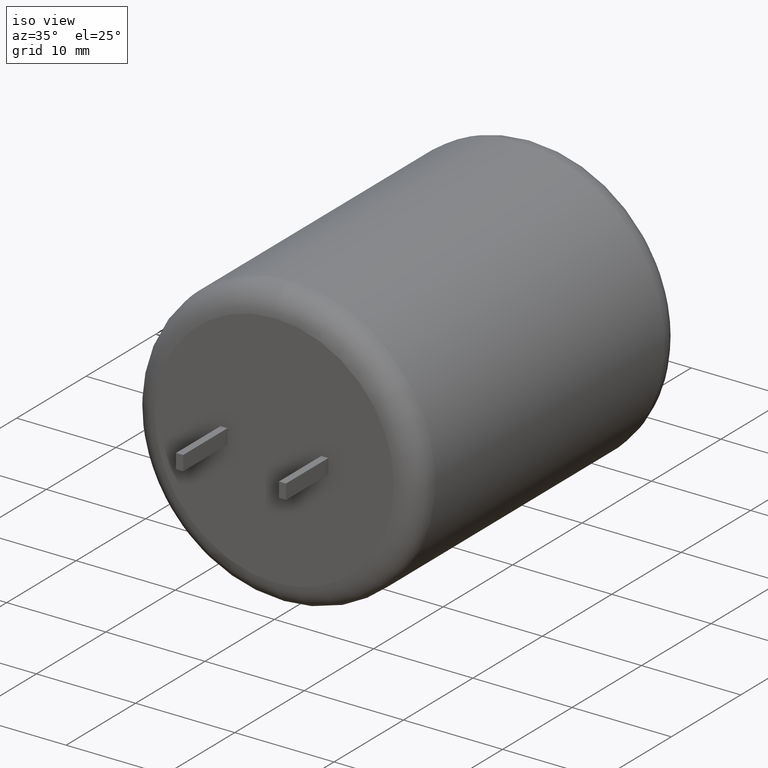
[diagram: clean part render]
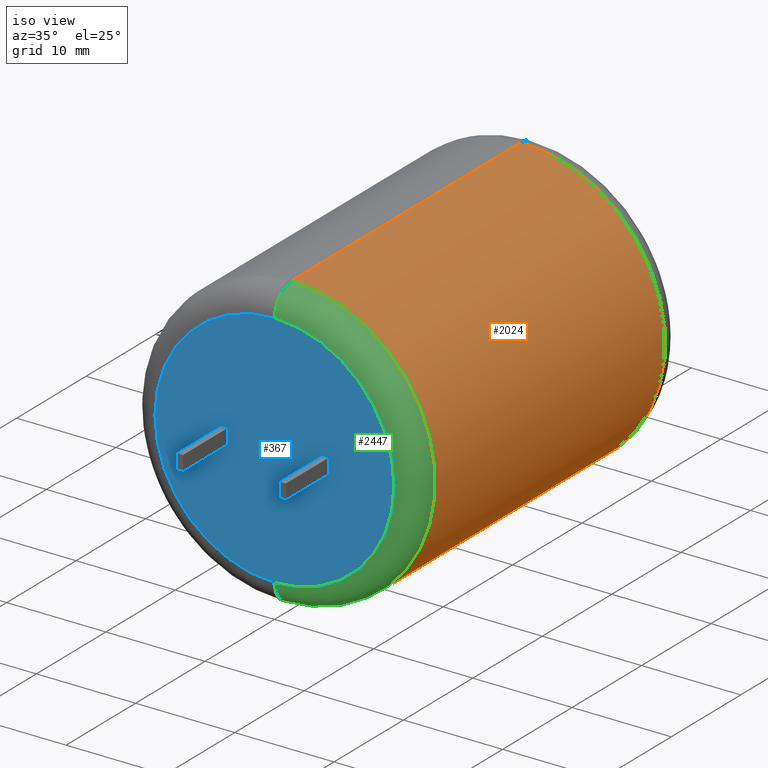
[diagram: same view with three faces highlighted in distinct colors, each labeled with its STEP entity id]
A machine part, iso view with three faces highlighted in distinct colors.
Their STEP definitions:

[orange] entity #2024 — the highlighted cylindrical surface (partial cylindrical patch) has radius 14.5 mm, axis along (-0, -1, -0).
#75 = EDGE_CURVE ( 'NONE', #1357, #1742, #758, .T. ) ;
#147 = CIRCLE ( 'NONE', #1514, 14.50000000000000000 ) ;
#158 = DIRECTION ( 'NONE',  ( 0.0000000000000000000, 0.0000000000000000000, 1.000000000000000000 ) ) ;
#278 = AXIS2_PLACEMENT_3D ( 'NONE', #2317, #658, #440 ) ;
#402 = CARTESIAN_POINT ( 'NONE',  ( 0.0000000000000000000, 35.54899999999999900, -14.50000000000000000 ) ) ;
#403 = ORIENTED_EDGE ( 'NONE', *, *, #1258, .T. ) ;
#430 = ORIENTED_EDGE ( 'NONE', *, *, #2253, .T. ) ;
#440 = DIRECTION ( 'NONE',  ( 0.0000000000000000000, 0.0000000000000000000, -1.000000000000000000 ) ) ;
#615 = VECTOR ( 'NONE', #2493, 1000.000000000000000 ) ;
#658 = DIRECTION ( 'NONE',  ( -0.0000000000000000000, -1.000000000000000000, -0.0000000000000000000 ) ) ;
#758 = LINE ( 'NONE', #1475, #2021 ) ;
#761 = CIRCLE ( 'NONE', #2254, 14.50000000000000000 ) ;
#783 = VERTEX_POINT ( 'NONE', #1229 ) ;
#1102 = CARTESIAN_POINT ( 'NONE',  ( 0.0000000000000000000, 2.451000000000001800, 0.0000000000000000000 ) ) ;
#1150 = ORIENTED_EDGE ( 'NONE', *, *, #2377, .T. ) ;
#1229 = CARTESIAN_POINT ( 'NONE',  ( 1.775737858763662000E-015, 2.451000000000001800, 14.50000000000000000 ) ) ;
#1258 = EDGE_CURVE ( 'NONE', #1357, #2062, #761, .T. ) ;
#1357 = VERTEX_POINT ( 'NONE', #402 ) ;
#1438 = DIRECTION ( 'NONE',  ( -0.0000000000000000000, -1.000000000000000000, -0.0000000000000000000 ) ) ;
#1475 = CARTESIAN_POINT ( 'NONE',  ( 0.0000000000000000000, 38.00000000000000000, -14.50000000000000000 ) ) ;
#1514 = AXIS2_PLACEMENT_3D ( 'NONE', #1102, #2191, #2163 ) ;
#1641 = LINE ( 'NONE', #2744, #615 ) ;
#1742 = VERTEX_POINT ( 'NONE', #2238 ) ;
#2021 = VECTOR ( 'NONE', #2519, 1000.000000000000000 ) ;
#2024 = ADVANCED_FACE ( 'NONE', ( #2154 ), #2378, .T. ) ;
#2062 = VERTEX_POINT ( 'NONE', #2740 ) ;
#2154 = FACE_OUTER_BOUND ( 'NONE', #2709, .T. ) ;
#2163 = DIRECTION ( 'NONE',  ( 0.0000000000000000000, 0.0000000000000000000, 1.000000000000000000 ) ) ;
#2176 = ORIENTED_EDGE ( 'NONE', *, *, #75, .F. ) ;
#2191 = DIRECTION ( 'NONE',  ( 0.0000000000000000000, 1.000000000000000000, 0.0000000000000000000 ) ) ;
#2238 = CARTESIAN_POINT ( 'NONE',  ( 0.0000000000000000000, 2.451000000000001800, -14.50000000000000000 ) ) ;
#2253 = EDGE_CURVE ( 'NONE', #2062, #783, #1641, .T. ) ;
#2254 = AXIS2_PLACEMENT_3D ( 'NONE', #2507, #1438, #158 ) ;
#2317 = CARTESIAN_POINT ( 'NONE',  ( 0.0000000000000000000, 38.00000000000000000, 0.0000000000000000000 ) ) ;
#2377 = EDGE_CURVE ( 'NONE', #783, #1742, #147, .T. ) ;
#2378 = CYLINDRICAL_SURFACE ( 'NONE', #278, 14.50000000000000000 ) ;
#2493 = DIRECTION ( 'NONE',  ( -0.0000000000000000000, -1.000000000000000000, -0.0000000000000000000 ) ) ;
#2507 = CARTESIAN_POINT ( 'NONE',  ( 0.0000000000000000000, 35.54899999999999900, 0.0000000000000000000 ) ) ;
#2519 = DIRECTION ( 'NONE',  ( -0.0000000000000000000, -1.000000000000000000, -0.0000000000000000000 ) ) ;
#2709 = EDGE_LOOP ( 'NONE', ( #403, #430, #1150, #2176 ) ) ;
#2740 = CARTESIAN_POINT ( 'NONE',  ( 1.775737858763662000E-015, 35.54899999999999900, 14.50000000000000000 ) ) ;
#2744 = CARTESIAN_POINT ( 'NONE',  ( 1.775737858763662000E-015, 38.00000000000000000, 14.50000000000000000 ) ) ;

[blue] entity #367 — the highlighted planar face has unit normal (0, 1, 0).
#13 = CARTESIAN_POINT ( 'NONE',  ( -5.429999999999998800, -0.0000000000000000000, -6.674325055353075200E-016 ) ) ;
#32 = VECTOR ( 'NONE', #1793, 1000.000000000000000 ) ;
#33 = CARTESIAN_POINT ( 'NONE',  ( -5.429999999999998800, 0.0000000000000000000, 0.7500000000000054400 ) ) ;
#140 = DIRECTION ( 'NONE',  ( 0.0000000000000000000, 0.0000000000000000000, 1.000000000000000000 ) ) ;
#148 = EDGE_CURVE ( 'NONE', #2671, #2106, #2186, .T. ) ;
#155 = CARTESIAN_POINT ( 'NONE',  ( 4.730000000000000400, 0.0000000000000000000, -0.7500000000000043300 ) ) ;
#244 = EDGE_LOOP ( 'NONE', ( #776, #2343 ) ) ;
#267 = AXIS2_PLACEMENT_3D ( 'NONE', #1732, #1088, #2573 ) ;
#272 = VERTEX_POINT ( 'NONE', #2107 ) ;
#349 = DIRECTION ( 'NONE',  ( 1.000000000000000000, 0.0000000000000000000, 1.548860246407863300E-016 ) ) ;
#367 = ADVANCED_FACE ( 'NONE', ( #2078, #1827, #877 ), #2127, .F. ) ;
#400 = CARTESIAN_POINT ( 'NONE',  ( -4.729999999999998600, 0.0000000000000000000, 0.7500000000000113200 ) ) ;
#436 = CARTESIAN_POINT ( 'NONE',  ( 5.430000000000000600, 0.0000000000000000000, -0.7500000000000042200 ) ) ;
#439 = VERTEX_POINT ( 'NONE', #2586 ) ;
#513 = AXIS2_PLACEMENT_3D ( 'NONE', #2100, #1280, #2533 ) ;
#524 = CARTESIAN_POINT ( 'NONE',  ( 5.430000000000000600, 0.0000000000000000000, -3.122849337825750200E-015 ) ) ;
#542 = EDGE_CURVE ( 'NONE', #814, #1081, #2522, .T. ) ;
#554 = CARTESIAN_POINT ( 'NONE',  ( 4.730000000000000400, 0.0000000000000000000, -0.7500000000000043300 ) ) ;
#596 = CARTESIAN_POINT ( 'NONE',  ( 4.730000000000001300, 0.0000000000000000000, 0.7499999999999990000 ) ) ;
#774 = CARTESIAN_POINT ( 'NONE',  ( 4.730000000000001300, 0.0000000000000000000, 0.7499999999999990000 ) ) ;
#776 = ORIENTED_EDGE ( 'NONE', *, *, #835, .T. ) ;
#793 = VECTOR ( 'NONE', #2147, 1000.000000000000000 ) ;
#814 = VERTEX_POINT ( 'NONE', #1856 ) ;
#835 = EDGE_CURVE ( 'NONE', #2446, #272, #1012, .T. ) ;
#839 = CARTESIAN_POINT ( 'NONE',  ( -5.429999999999998800, -0.0000000000000000000, -0.7500000000000006700 ) ) ;
#845 = VECTOR ( 'NONE', #349, 1000.000000000000000 ) ;
#876 = CARTESIAN_POINT ( 'NONE',  ( -5.429999999999998800, 0.0000000000000000000, 0.7500000000000054400 ) ) ;
#877 = FACE_BOUND ( 'NONE', #2307, .T. ) ;
#921 = ORIENTED_EDGE ( 'NONE', *, *, #542, .F. ) ;
#925 = ORIENTED_EDGE ( 'NONE', *, *, #2155, .F. ) ;
#1012 = CIRCLE ( 'NONE', #2268, 12.04900000000000100 ) ;
#1027 = DIRECTION ( 'NONE',  ( -0.0000000000000000000, -1.000000000000000000, -0.0000000000000000000 ) ) ;
#1038 = ORIENTED_EDGE ( 'NONE', *, *, #148, .T. ) ;
#1062 = DIRECTION ( 'NONE',  ( 0.0000000000000000000, 0.0000000000000000000, 1.000000000000000000 ) ) ;
#1081 = VERTEX_POINT ( 'NONE', #596 ) ;
#1088 = DIRECTION ( 'NONE',  ( 0.0000000000000000000, 1.000000000000000000, 0.0000000000000000000 ) ) ;
#1129 = VECTOR ( 'NONE', #1885, 1000.000000000000000 ) ;
#1248 = DIRECTION ( 'NONE',  ( 0.0000000000000000000, -0.0000000000000000000, -1.000000000000000000 ) ) ;
#1280 = DIRECTION ( 'NONE',  ( -0.0000000000000000000, -1.000000000000000000, -0.0000000000000000000 ) ) ;
#1303 = ORIENTED_EDGE ( 'NONE', *, *, #2746, .T. ) ;
#1432 = VECTOR ( 'NONE', #2364, 1000.000000000000000 ) ;
#1471 = LINE ( 'NONE', #524, #2414 ) ;
#1559 = CARTESIAN_POINT ( 'NONE',  ( 0.0000000000000000000, 0.0000000000000000000, 12.04900000000000100 ) ) ;
#1590 = ORIENTED_EDGE ( 'NONE', *, *, #2005, .F. ) ;
#1609 = LINE ( 'NONE', #2279, #2485 ) ;
#1683 = CARTESIAN_POINT ( 'NONE',  ( -5.429999999999998800, -0.0000000000000000000, -0.7500000000000006700 ) ) ;
#1712 = VECTOR ( 'NONE', #2710, 1000.000000000000000 ) ;
#1732 = CARTESIAN_POINT ( 'NONE',  ( 0.0000000000000000000, 0.0000000000000000000, 0.0000000000000000000 ) ) ;
#1773 = EDGE_CURVE ( 'NONE', #439, #1816, #1961, .T. ) ;
#1793 = DIRECTION ( 'NONE',  ( -1.000000000000000000, -0.0000000000000000000, 1.548860246407865500E-015 ) ) ;
#1816 = VERTEX_POINT ( 'NONE', #436 ) ;
#1827 = FACE_BOUND ( 'NONE', #2728, .T. ) ;
#1846 = VERTEX_POINT ( 'NONE', #2646 ) ;
#1856 = CARTESIAN_POINT ( 'NONE',  ( 5.430000000000000600, 0.0000000000000000000, 0.7499999999999980000 ) ) ;
#1885 = DIRECTION ( 'NONE',  ( 1.000000000000000000, 0.0000000000000000000, 0.0000000000000000000 ) ) ;
#1891 = LINE ( 'NONE', #155, #1712 ) ;
#1906 = EDGE_CURVE ( 'NONE', #1081, #439, #1891, .T. ) ;
#1944 = ORIENTED_EDGE ( 'NONE', *, *, #2235, .T. ) ;
#1961 = LINE ( 'NONE', #554, #845 ) ;
#1963 = EDGE_CURVE ( 'NONE', #272, #2446, #2655, .T. ) ;
#2005 = EDGE_CURVE ( 'NONE', #2671, #1846, #2689, .T. ) ;
#2025 = LINE ( 'NONE', #876, #793 ) ;
#2078 = FACE_OUTER_BOUND ( 'NONE', #244, .T. ) ;
#2100 = CARTESIAN_POINT ( 'NONE',  ( 0.0000000000000000000, 0.0000000000000000000, 0.0000000000000000000 ) ) ;
#2106 = VERTEX_POINT ( 'NONE', #33 ) ;
#2107 = CARTESIAN_POINT ( 'NONE',  ( 1.625657393528153900E-015, 0.0000000000000000000, -12.04900000000000100 ) ) ;
#2127 = PLANE ( 'NONE',  #267 ) ;
#2147 = DIRECTION ( 'NONE',  ( 1.000000000000000000, 0.0000000000000000000, 8.363845330602461400E-015 ) ) ;
#2155 = EDGE_CURVE ( 'NONE', #1816, #814, #1471, .T. ) ;
#2186 = LINE ( 'NONE', #13, #1432 ) ;
#2235 = EDGE_CURVE ( 'NONE', #2255, #1846, #1609, .T. ) ;
#2255 = VERTEX_POINT ( 'NONE', #400 ) ;
#2268 = AXIS2_PLACEMENT_3D ( 'NONE', #2274, #1027, #140 ) ;
#2274 = CARTESIAN_POINT ( 'NONE',  ( 0.0000000000000000000, 0.0000000000000000000, 0.0000000000000000000 ) ) ;
#2276 = ORIENTED_EDGE ( 'NONE', *, *, #1773, .F. ) ;
#2279 = CARTESIAN_POINT ( 'NONE',  ( -4.729999999999998600, 0.0000000000000000000, 0.7500000000000113200 ) ) ;
#2307 = EDGE_LOOP ( 'NONE', ( #2514, #921, #925, #2276 ) ) ;
#2343 = ORIENTED_EDGE ( 'NONE', *, *, #1963, .T. ) ;
#2364 = DIRECTION ( 'NONE',  ( 0.0000000000000000000, 0.0000000000000000000, 1.000000000000000000 ) ) ;
#2414 = VECTOR ( 'NONE', #1062, 1000.000000000000000 ) ;
#2446 = VERTEX_POINT ( 'NONE', #1559 ) ;
#2485 = VECTOR ( 'NONE', #1248, 1000.000000000000000 ) ;
#2514 = ORIENTED_EDGE ( 'NONE', *, *, #1906, .F. ) ;
#2522 = LINE ( 'NONE', #774, #32 ) ;
#2533 = DIRECTION ( 'NONE',  ( 0.0000000000000000000, 0.0000000000000000000, 1.000000000000000000 ) ) ;
#2573 = DIRECTION ( 'NONE',  ( 0.0000000000000000000, -0.0000000000000000000, 1.000000000000000000 ) ) ;
#2586 = CARTESIAN_POINT ( 'NONE',  ( 4.730000000000000400, 0.0000000000000000000, -0.7500000000000043300 ) ) ;
#2646 = CARTESIAN_POINT ( 'NONE',  ( -4.729999999999998600, 0.0000000000000000000, -0.7500000000000006700 ) ) ;
#2655 = CIRCLE ( 'NONE', #513, 12.04900000000000100 ) ;
#2671 = VERTEX_POINT ( 'NONE', #1683 ) ;
#2689 = LINE ( 'NONE', #839, #1129 ) ;
#2710 = DIRECTION ( 'NONE',  ( -5.782411586589343800E-016, -0.0000000000000000000, -1.000000000000000000 ) ) ;
#2728 = EDGE_LOOP ( 'NONE', ( #1038, #1303, #1944, #1590 ) ) ;
#2746 = EDGE_CURVE ( 'NONE', #2106, #2255, #2025, .T. ) ;

[green] entity #2447 — the highlighted toroidal blend (fillet) surface has major radius 12.049 mm and minor (blend) radius 2.451 mm.
#76 = CARTESIAN_POINT ( 'NONE',  ( 0.0000000000000000000, 2.451000000000001800, 0.0000000000000000000 ) ) ;
#122 = DIRECTION ( 'NONE',  ( 0.0000000000000000000, 0.0000000000000000000, 1.000000000000000000 ) ) ;
#147 = CIRCLE ( 'NONE', #1514, 14.50000000000000000 ) ;
#262 = CIRCLE ( 'NONE', #1952, 2.451000000000000100 ) ;
#272 = VERTEX_POINT ( 'NONE', #2107 ) ;
#513 = AXIS2_PLACEMENT_3D ( 'NONE', #2100, #1280, #2533 ) ;
#565 = EDGE_CURVE ( 'NONE', #2446, #783, #2068, .T. ) ;
#709 = ORIENTED_EDGE ( 'NONE', *, *, #565, .F. ) ;
#783 = VERTEX_POINT ( 'NONE', #1229 ) ;
#1067 = DIRECTION ( 'NONE',  ( 1.000000000000000000, -0.0000000000000000000, 1.224646799147353200E-016 ) ) ;
#1102 = CARTESIAN_POINT ( 'NONE',  ( 0.0000000000000000000, 2.451000000000001800, 0.0000000000000000000 ) ) ;
#1229 = CARTESIAN_POINT ( 'NONE',  ( 1.775737858763662000E-015, 2.451000000000001800, 14.50000000000000000 ) ) ;
#1280 = DIRECTION ( 'NONE',  ( -0.0000000000000000000, -1.000000000000000000, -0.0000000000000000000 ) ) ;
#1514 = AXIS2_PLACEMENT_3D ( 'NONE', #1102, #2191, #2163 ) ;
#1559 = CARTESIAN_POINT ( 'NONE',  ( 0.0000000000000000000, 0.0000000000000000000, 12.04900000000000100 ) ) ;
#1596 = FACE_OUTER_BOUND ( 'NONE', #2626, .T. ) ;
#1742 = VERTEX_POINT ( 'NONE', #2238 ) ;
#1747 = AXIS2_PLACEMENT_3D ( 'NONE', #76, #2381, #2392 ) ;
#1910 = ORIENTED_EDGE ( 'NONE', *, *, #1963, .F. ) ;
#1952 = AXIS2_PLACEMENT_3D ( 'NONE', #2562, #1067, #2326 ) ;
#1963 = EDGE_CURVE ( 'NONE', #272, #2446, #2655, .T. ) ;
#2068 = CIRCLE ( 'NONE', #2183, 2.451000000000000100 ) ;
#2100 = CARTESIAN_POINT ( 'NONE',  ( 0.0000000000000000000, 0.0000000000000000000, 0.0000000000000000000 ) ) ;
#2107 = CARTESIAN_POINT ( 'NONE',  ( 1.625657393528153900E-015, 0.0000000000000000000, -12.04900000000000100 ) ) ;
#2163 = DIRECTION ( 'NONE',  ( 0.0000000000000000000, 0.0000000000000000000, 1.000000000000000000 ) ) ;
#2183 = AXIS2_PLACEMENT_3D ( 'NONE', #2643, #2667, #122 ) ;
#2191 = DIRECTION ( 'NONE',  ( 0.0000000000000000000, 1.000000000000000000, 0.0000000000000000000 ) ) ;
#2238 = CARTESIAN_POINT ( 'NONE',  ( 0.0000000000000000000, 2.451000000000001800, -14.50000000000000000 ) ) ;
#2321 = ORIENTED_EDGE ( 'NONE', *, *, #2377, .F. ) ;
#2326 = DIRECTION ( 'NONE',  ( 1.224646799147352700E-016, 0.0000000000000000000, -1.000000000000000000 ) ) ;
#2377 = EDGE_CURVE ( 'NONE', #783, #1742, #147, .T. ) ;
#2381 = DIRECTION ( 'NONE',  ( 0.0000000000000000000, 1.000000000000000000, 0.0000000000000000000 ) ) ;
#2392 = DIRECTION ( 'NONE',  ( 0.0000000000000000000, 0.0000000000000000000, 1.000000000000000000 ) ) ;
#2397 = TOROIDAL_SURFACE ( 'NONE', #1747, 12.04900000000000100, 2.451000000000000100 ) ;
#2446 = VERTEX_POINT ( 'NONE', #1559 ) ;
#2447 = ADVANCED_FACE ( 'NONE', ( #1596 ), #2397, .T. ) ;
#2500 = ORIENTED_EDGE ( 'NONE', *, *, #2694, .T. ) ;
#2533 = DIRECTION ( 'NONE',  ( 0.0000000000000000000, 0.0000000000000000000, 1.000000000000000000 ) ) ;
#2562 = CARTESIAN_POINT ( 'NONE',  ( 1.475576928292645800E-015, 2.451000000000001800, -12.04900000000000100 ) ) ;
#2626 = EDGE_LOOP ( 'NONE', ( #1910, #2500, #2321, #709 ) ) ;
#2643 = CARTESIAN_POINT ( 'NONE',  ( 0.0000000000000000000, 2.451000000000001800, 12.04900000000000100 ) ) ;
#2655 = CIRCLE ( 'NONE', #513, 12.04900000000000100 ) ;
#2667 = DIRECTION ( 'NONE',  ( -1.000000000000000000, 0.0000000000000000000, 0.0000000000000000000 ) ) ;
#2694 = EDGE_CURVE ( 'NONE', #272, #1742, #262, .T. ) ;